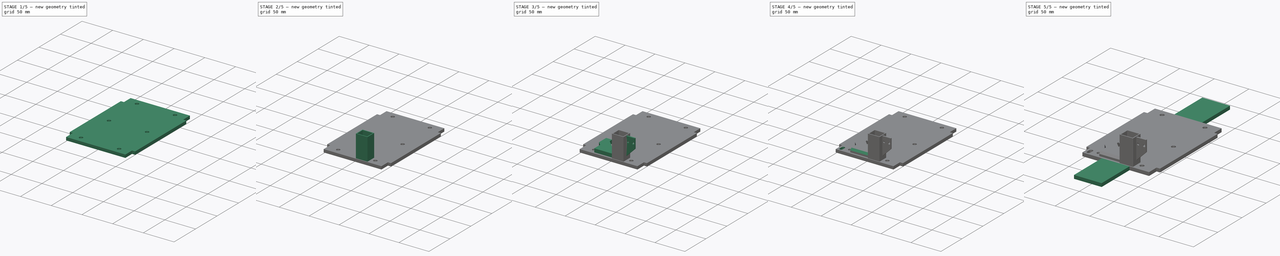
[diagram: build sequence overview — one tinted view per stage of 5, left to right]
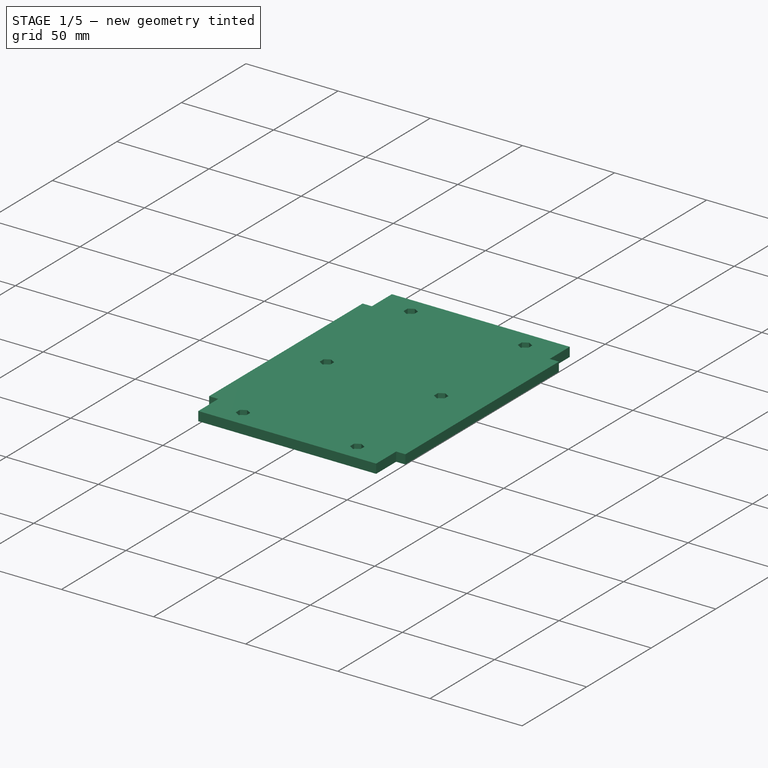
[diagram: stage 1 of 5 — iso view after this stage's code; geometry added in this stage tinted green]
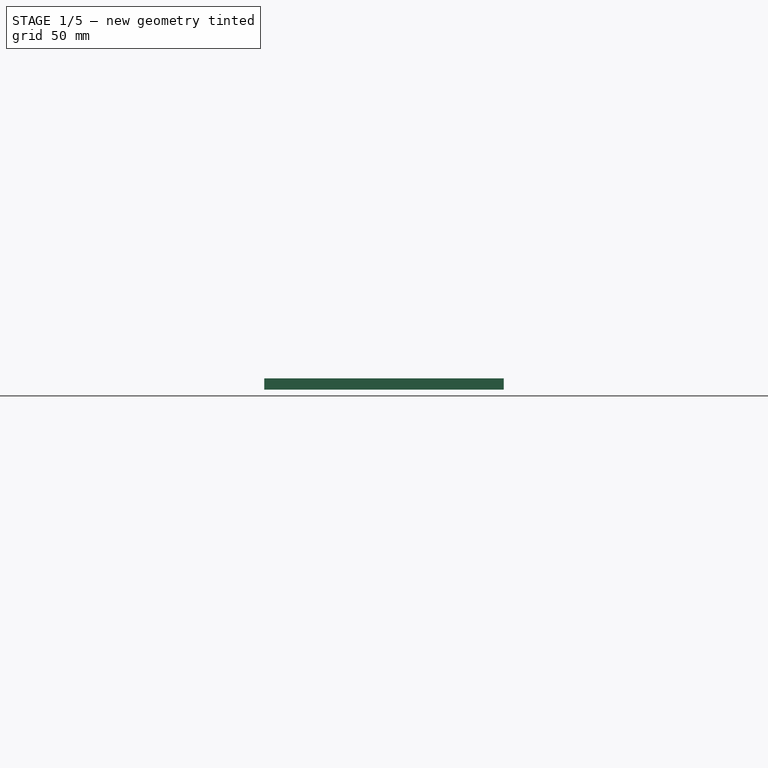
[diagram: stage 1 of 5 — front view after this stage's code; geometry added in this stage tinted green]
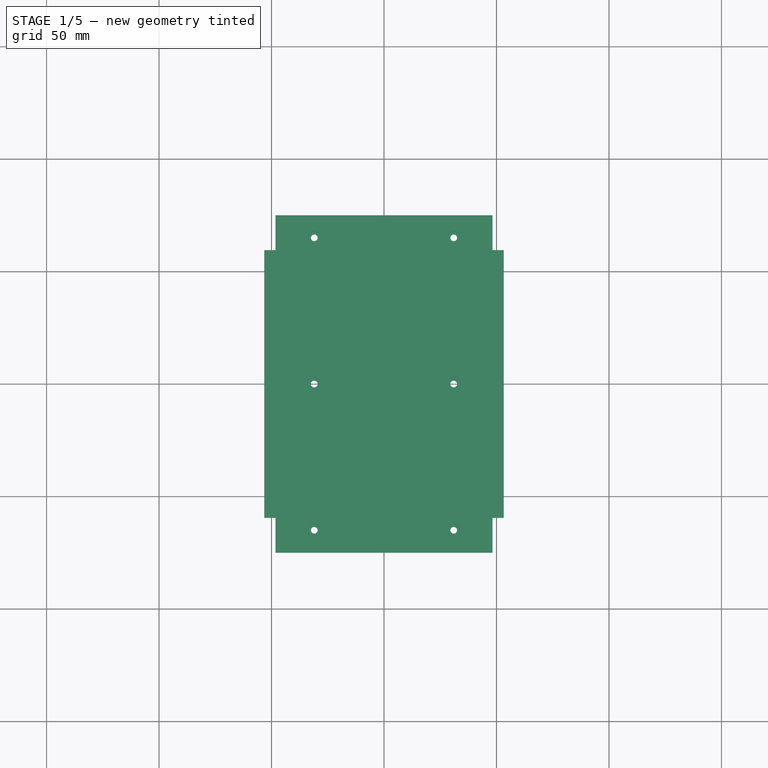
[diagram: stage 1 of 5 — top view after this stage's code; geometry added in this stage tinted green]
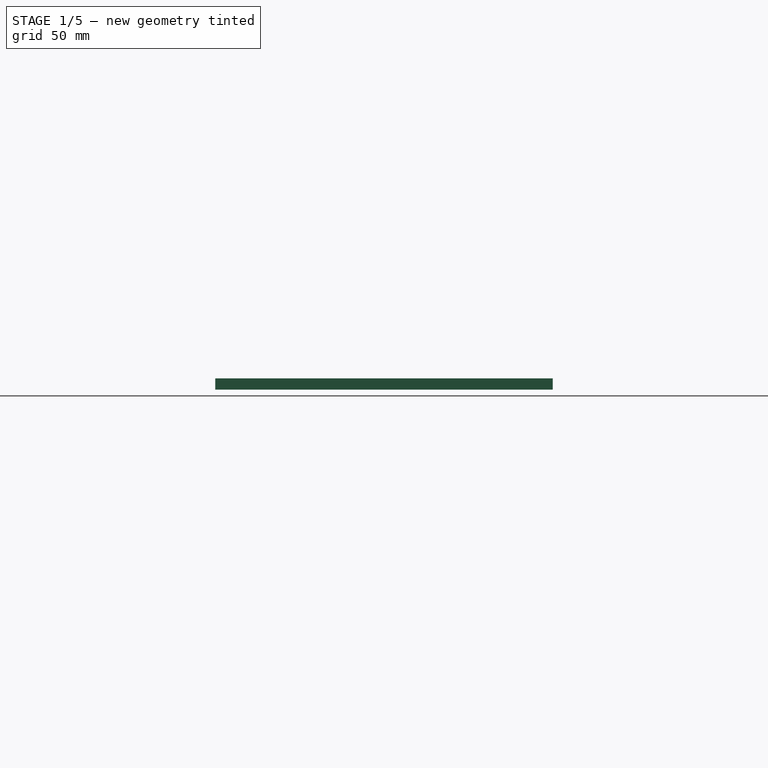
[diagram: stage 1 of 5 — right view after this stage's code; geometry added in this stage tinted green]
FCSTD DOCUMENT  (FreeCAD 0.18R4 (GitTag))
Label: Circuitry_Mountingplate (Template)
License: CreativeCommons Attribution-NonCommercial
LicenseURL: http://creativecommons.org/licenses/by-nc/4.0/
objects: Sketcher::SketchObject×14, PartDesign::Pad×7, PartDesign::Pocket×7, PartDesign::Body×3, PartDesign::Chamfer×1, PartDesign::Fillet×1, App::Part×1
note: 47 computed .brp shape members not serialized (recipe doc carries the construction recipe); baked Part::Feature solids carry a one-line shape summary decoded from their .brp

FEATURE [PartDesign::Body] Body002  label="Circuitry Mountingplate Rear Extension"
  Group = -> [Sketch418,Pad198]
  Origin = -> Origin003
  Tip = -> Pad198
FEATURE [Sketcher::SketchObject] Sketch
  MapMode = 5
  Support = -> [XY_Plane001]
  sketch-geometry (12):
    g0: LineSegment StartX=-53.25 StartY=-59.5 StartZ=0 EndX=-53.25 EndY=59.5 EndZ=0
    g1: LineSegment StartX=-53.25 StartY=59.5 StartZ=0 EndX=-48.25 EndY=59.5 EndZ=0
    g2: LineSegment StartX=-48.25 StartY=59.5 StartZ=0 EndX=-48.25 EndY=75 EndZ=0
    g3: LineSegment StartX=-48.25 StartY=75 StartZ=0 EndX=48.25 EndY=75 EndZ=0
    g4: LineSegment StartX=48.25 StartY=75 StartZ=0 EndX=48.25 EndY=59.5 EndZ=0
    g5: LineSegment StartX=48.25 StartY=59.5 StartZ=0 EndX=53.25 EndY=59.5 EndZ=0
    g6: LineSegment StartX=53.25 StartY=59.5 StartZ=0 EndX=53.25 EndY=-59.5 EndZ=0
    g7: LineSegment StartX=53.25 StartY=-59.5 StartZ=0 EndX=48.25 EndY=-59.5 EndZ=0
    g8: LineSegment StartX=48.25 StartY=-59.5 StartZ=0 EndX=48.25 EndY=-75 EndZ=0
    g9: LineSegment StartX=48.25 StartY=-75 StartZ=0 EndX=-48.25 EndY=-75 EndZ=0
    g10: LineSegment StartX=-48.25 StartY=-75 StartZ=0 EndX=-48.25 EndY=-59.5 EndZ=0
    g11: LineSegment StartX=-48.25 StartY=-59.5 StartZ=0 EndX=-53.25 EndY=-59.5 EndZ=0
  constraints (33):
    c: Coincident(g0,g1)
    c: Horizontal(g1)
    c: Coincident(g1,g2)
    c: Vertical(g2)
    c: Coincident(g2,g3)
    c: Horizontal(g3)
    c: Coincident(g3,g4)
    c: Vertical(g4)
    c: Coincident(g4,g5)
    c: Coincident(g5,g6)
    c: Vertical(g6)
    c: Coincident(g6,g7)
    c: Coincident(g7,g8)
    c: Vertical(g8)
    c: Coincident(g8,g9)
    c: Horizontal(g9)
    c: Coincident(g9,g10)
    c: Vertical(g10)
    c: Coincident(g10,g11)
    c: Coincident(g11,g0)
    c: Horizontal(g11)
    c: Symmetric(g1,g4,g-2)
    c: Symmetric(g7,g10,g-2)
    c: Vertical(g10,g1)
    c: Equal(g1,g5)
    c: Horizontal(g5)
    c: Horizontal(g7)
    c: Equal(g2,g10)
    c: Symmetric(g0,g0,g-1)
    c: DistanceX(g0,g5) = 106.5
    c: DistanceY(g9,g2) = 150
    c: DistanceX(g1,g1) = 5
    c: DistanceY(g2,g2) = 15.5
FEATURE [PartDesign::Pad] Pad  label="Baseplate"
  Length = 5
  Length2 = 100
  Profile = -> Sketch
  Type = 0
FEATURE [Sketcher::SketchObject] Sketch002
  MapMode = 5
  Placement = pos=(0,0,5) rot=(0,0,1;0rad)
  Support = -> [Pad]
  sketch-geometry (48):
    g0: LineSegment StartX=-31 StartY=-61.7668 StartZ=0 EndX=-33.8 EndY=-63.3834 EndZ=0
    g1: LineSegment StartX=-33.8 StartY=-63.3834 StartZ=0 EndX=-33.8 EndY=-66.6166 EndZ=0
    g2: LineSegment StartX=-33.8 StartY=-66.6166 StartZ=0 EndX=-31 EndY=-68.2332 EndZ=0
    g3: LineSegment StartX=-31 StartY=-68.2332 StartZ=0 EndX=-28.2 EndY=-66.6166 EndZ=0
    g4: LineSegment StartX=-28.2 StartY=-66.6166 StartZ=0 EndX=-28.2 EndY=-63.3834 EndZ=0
    g5: LineSegment StartX=-28.2 StartY=-63.3834 StartZ=0 EndX=-31 EndY=-61.7668 EndZ=0
    g6: Circle [constr] CenterX=-31 CenterY=-65 CenterZ=0 NormalX=0 NormalY=0 NormalZ=1 AngleXU=0 Radius=3.23316
    g7: LineSegment StartX=31 StartY=-61.7668 StartZ=0 EndX=28.2 EndY=-63.3834 EndZ=0
    g8: LineSegment StartX=28.2 StartY=-63.3834 StartZ=0 EndX=28.2 EndY=-66.6166 EndZ=0
    g9: LineSegment StartX=28.2 StartY=-66.6166 StartZ=0 EndX=31 EndY=-68.2332 EndZ=0
    g10: LineSegment StartX=31 StartY=-68.2332 StartZ=0 EndX=33.8 EndY=-66.6166 EndZ=0
    g11: LineSegment StartX=33.8 StartY=-66.6166 StartZ=0 EndX=33.8 EndY=-63.3834 EndZ=0
    g12: LineSegment StartX=33.8 StartY=-63.3834 StartZ=0 EndX=31 EndY=-61.7668 EndZ=0
    g13: Circle [constr] CenterX=31 CenterY=-65 CenterZ=0 NormalX=0 NormalY=0 NormalZ=1 AngleXU=0 Radius=3.23316
    g14: LineSegment StartX=31 StartY=3.23316 StartZ=0 EndX=28.2 EndY=1.61658 EndZ=0
    g15: LineSegment StartX=28.2 StartY=1.61658 StartZ=0 EndX=28.2 EndY=-1.61658 EndZ=0
    g16: LineSegment StartX=28.2 StartY=-1.61658 StartZ=0 EndX=31 EndY=-3.23316 EndZ=0
    g17: LineSegment StartX=31 StartY=-3.23316 StartZ=0 EndX=33.8 EndY=-1.61658 EndZ=0
    g18: LineSegment StartX=33.8 StartY=-1.61658 StartZ=0 EndX=33.8 EndY=1.61658 EndZ=0
    g19: LineSegment StartX=33.8 StartY=1.61658 StartZ=0 EndX=31 EndY=3.23316 EndZ=0
    g20: Circle [constr] CenterX=31 CenterY=0 CenterZ=0 NormalX=0 NormalY=0 NormalZ=1 AngleXU=0 Radius=3.23316
    g21: LineSegment StartX=-31 StartY=3.23316 StartZ=0 EndX=-33.8 EndY=1.61658 EndZ=0
    g22: LineSegment StartX=-33.8 StartY=1.61658 StartZ=0 EndX=-33.8 EndY=-1.61658 EndZ=0
    g23: LineSegment StartX=-33.8 StartY=-1.61658 StartZ=0 EndX=-31 EndY=-3.23316 EndZ=0
    g24: LineSegment StartX=-31 StartY=-3.23316 StartZ=0 EndX=-28.2 EndY=-1.61658 EndZ=0
    g25: LineSegment StartX=-28.2 StartY=-1.61658 StartZ=0 EndX=-28.2 EndY=1.61658 EndZ=0
    g26: LineSegment StartX=-28.2 StartY=1.61658 StartZ=0 EndX=-31 EndY=3.23316 EndZ=0
    g27: Circle [constr] CenterX=-31 CenterY=0 CenterZ=0 NormalX=0 NormalY=0 NormalZ=1 AngleXU=0 Radius=3.23316
    g28: LineSegment StartX=-31 StartY=68.2332 StartZ=0 EndX=-33.8 EndY=66.6166 EndZ=0
    g29: LineSegment StartX=-33.8 StartY=66.6166 StartZ=0 EndX=-33.8 EndY=63.3834 EndZ=0
    g30: LineSegment StartX=-33.8 StartY=63.3834 StartZ=0 EndX=-31 EndY=61.7668 EndZ=0
    g31: LineSegment StartX=-31 StartY=61.7668 StartZ=0 EndX=-28.2 EndY=63.3834 EndZ=0
    g32: LineSegment StartX=-28.2 StartY=63.3834 StartZ=0 EndX=-28.2 EndY=66.6166 EndZ=0
    g33: LineSegment StartX=-28.2 StartY=66.6166 StartZ=0 EndX=-31 EndY=68.2332 EndZ=0
    g34: Circle [constr] CenterX=-31 CenterY=65 CenterZ=0 NormalX=0 NormalY=0 NormalZ=1 AngleXU=0 Radius=3.23316
    g35: LineSegment StartX=31 StartY=68.2332 StartZ=0 EndX=28.2 EndY=66.6166 EndZ=0
    g36: LineSegment StartX=28.2 StartY=66.6166 StartZ=0 EndX=28.2 EndY=63.3834 EndZ=0
    g37: LineSegment StartX=28.2 StartY=63.3834 StartZ=0 EndX=31 EndY=61.7668 EndZ=0
    g38: LineSegment StartX=31 StartY=61.7668 StartZ=0 EndX=33.8 EndY=63.3834 EndZ=0
    g39: LineSegment StartX=33.8 StartY=63.3834 StartZ=0 EndX=33.8 EndY=66.6166 EndZ=0
    g40: LineSegment StartX=33.8 StartY=66.6166 StartZ=0 EndX=31 EndY=68.2332 EndZ=0
    g41: Circle [constr] CenterX=31 CenterY=65 CenterZ=0 NormalX=0 NormalY=0 NormalZ=1 AngleXU=0 Radius=3.23316
    g42: Circle CenterX=-31 CenterY=65 CenterZ=0 NormalX=0 NormalY=0 NormalZ=1 AngleXU=0 Radius=1.5
    g43: Circle CenterX=31 CenterY=65 CenterZ=0 NormalX=0 NormalY=0 NormalZ=1 AngleXU=0 Radius=1.5
    g44: Circle CenterX=-31 CenterY=0 CenterZ=0 NormalX=0 NormalY=0 NormalZ=1 AngleXU=0 Radius=1.5
    g45: Circle CenterX=31 CenterY=0 CenterZ=0 NormalX=0 NormalY=0 NormalZ=1 AngleXU=0 Radius=1.5
    g46: Circle CenterX=31 CenterY=-65 CenterZ=0 NormalX=0 NormalY=0 NormalZ=1 AngleXU=0 Radius=1.5
    g47: Circle CenterX=-31 CenterY=-65 CenterZ=0 NormalX=0 NormalY=0 NormalZ=1 AngleXU=0 Radius=1.5
  constraints (110):
    c: Coincident(g0,g1)
    c: Coincident(g1,g2)
    c: Coincident(g2,g3)
    c: Coincident(g3,g4)
    c: Coincident(g4,g5)
    c: Coincident(g5,g0)
    c: Equal(g0, g1-g5) x5
    c: PointOnObject(g0,g6)
    c: PointOnObject(g1,g6)
    c: PointOnObject(g2,g6)
    c: PointOnObject(g3,g6)
    c: PointOnObject(g4,g6)
    c: PointOnObject(g5,g6)
    c: Coincident(g7,g8)
    c: Coincident(g8,g9)
    c: Coincident(g9,g10)
    c: Coincident(g10,g11)
    c: Coincident(g11,g12)
    c: Coincident(g12,g7)
    c: Equal(g7, g8-g12) x5
    c: PointOnObject(g7,g13)
    c: PointOnObject(g8,g13)
    c: PointOnObject(g9,g13)
    c: PointOnObject(g10,g13)
    c: PointOnObject(g11,g13)
    c: PointOnObject(g12,g13)
    c: Coincident(g14,g15)
    c: Coincident(g15,g16)
    c: Coincident(g16,g17)
    c: Coincident(g17,g18)
    c: Coincident(g18,g19)
    c: Coincident(g19,g14)
    c: Equal(g14, g15-g19) x5
    c: PointOnObject(g14,g20)
    c: PointOnObject(g15,g20)
    c: PointOnObject(g16,g20)
    c: PointOnObject(g17,g20)
    c: PointOnObject(g18,g20)
    c: PointOnObject(g19,g20)
    c: PointOnObject(g20,g-1)
    c: Coincident(g21,g22)
    c: Coincident(g22,g23)
    c: Coincident(g23,g24)
    c: Coincident(g24,g25)
    c: Coincident(g25,g26)
    c: Coincident(g26,g21)
    c: Equal(g21, g22-g26) x5
    c: PointOnObject(g21,g27)
    c: PointOnObject(g22,g27)
    c: PointOnObject(g23,g27)
    c: PointOnObject(g24,g27)
    c: PointOnObject(g25,g27)
    c: PointOnObject(g26,g27)
    c: Coincident(g28,g29)
    c: Coincident(g29,g30)
    c: Coincident(g30,g31)
    c: Coincident(g31,g32)
    c: Coincident(g32,g33)
    c: Coincident(g33,g28)
    c: Equal(g28, g29-g33) x5
    c: PointOnObject(g28,g34)
    c: PointOnObject(g29,g34)
    c: PointOnObject(g30,g34)
    c: PointOnObject(g31,g34)
    c: PointOnObject(g32,g34)
    c: PointOnObject(g33,g34)
    c: Coincident(g35,g36)
    c: Coincident(g36,g37)
    c: Coincident(g37,g38)
    c: Coincident(g38,g39)
    c: Coincident(g39,g40)
    c: Coincident(g40,g35)
    c: Equal(g35, g36-g40) x5
    c: PointOnObject(g35,g41)
    c: PointOnObject(g36,g41)
    c: PointOnObject(g37,g41)
    c: PointOnObject(g38,g41)
    c: PointOnObject(g39,g41)
    c: PointOnObject(g40,g41)
    c: Coincident(g42,g34)
    c: Coincident(g43,g41)
    c: Coincident(g44,g27)
    c: Coincident(g45,g20)
    c: Coincident(g46,g13)
    c: Coincident(g47,g6)
    c: Vertical(g4)
    c: Vertical(g8)
    c: Vertical(g15)
    c: Vertical(g25)
    c: Vertical(g32)
    c: Vertical(g36)
    c: Equal(g34,g41)
    c: Equal(g41,g27)
    c: Equal(g27,g20)
    c: Equal(g20,g13)
    c: Equal(g13,g6)
    c: Symmetric(g44,g45,g-1)
    c: Symmetric(g47,g46,g-2)
    c: Symmetric(g42,g43,g-2)
    c: Vertical(g42,g44)
    c: Equal(g42,g43)
    c: Equal(g43,g44)
    c: Equal(g44,g45)
    c: Equal(g45,g47)
    c: Equal(g47,g46)
    c: Radius(g46) = 1.5
    c: DistanceX(g7,g11) = 5.6
    c: DistanceX(g44,g45) = 62
    c: DistanceY(g45,g43) = 65
    c: Symmetric(g43,g46,g-1)
FEATURE [PartDesign::Pocket] Pocket  label="M3 Nutholes LiPo Mountingbrackets"
  BaseFeature = -> Pad
  Length = 2.5
  Length2 = 100
  Profile = -> Sketch002
  Type = 0
FEATURE [Sketcher::SketchObject] Sketch003
  ExternalGeometry = -> [Pocket]
  MapMode = 5
  Placement = pos=(0,0,5) rot=(0,0,1;0rad)
  Support = -> [Pocket]
  sketch-geometry (6):
    g0: Circle CenterX=-31 CenterY=65 CenterZ=0 NormalX=0 NormalY=0 NormalZ=1 AngleXU=0 Radius=1.5
    g1: Circle CenterX=31 CenterY=65 CenterZ=0 NormalX=0 NormalY=0 NormalZ=1 AngleXU=0 Radius=1.5
    g2: Circle CenterX=31 CenterY=0 CenterZ=0 NormalX=0 NormalY=0 NormalZ=1 AngleXU=0 Radius=1.5
    g3: Circle CenterX=-31 CenterY=0 CenterZ=0 NormalX=0 NormalY=0 NormalZ=1 AngleXU=0 Radius=1.5
    g4: Circle CenterX=-31 CenterY=-65 CenterZ=0 NormalX=0 NormalY=0 NormalZ=1 AngleXU=0 Radius=1.5
    g5: Circle CenterX=31 CenterY=-65 CenterZ=0 NormalX=0 NormalY=0 NormalZ=1 AngleXU=0 Radius=1.5
  constraints (12):
    c: Coincident(g0,g-8)
    c: Coincident(g1,g-7)
    c: Coincident(g2,g-6)
    c: Coincident(g3,g-5)
    c: Coincident(g4,g-4)
    c: Coincident(g5,g-3)
    c: Equal(g5,g4)
    c: Equal(g4,g3)
    c: Equal(g3,g2)
    c: Equal(g2,g0)
    c: Equal(g0,g1)
    c: Equal(g1,g-5)
FEATURE [PartDesign::Pocket] Pocket001  label="M3 Screwholes LiPo Mountingbrackets"
  BaseFeature = -> Pocket
  Length = 5
  Length2 = 100
  Profile = -> Sketch003
  Type = 0
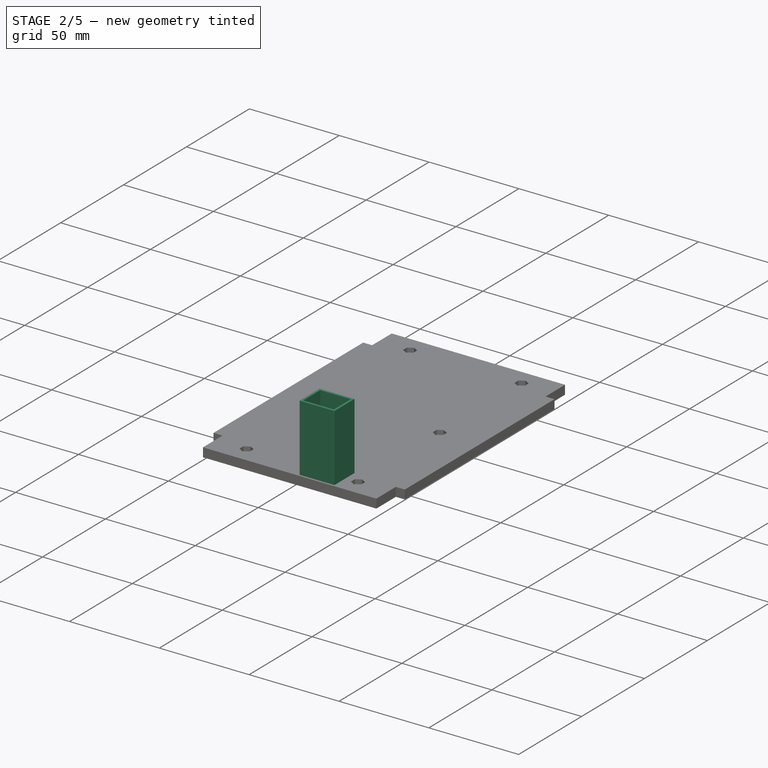
[diagram: stage 2 of 5 — iso view after this stage's code; geometry added in this stage tinted green]
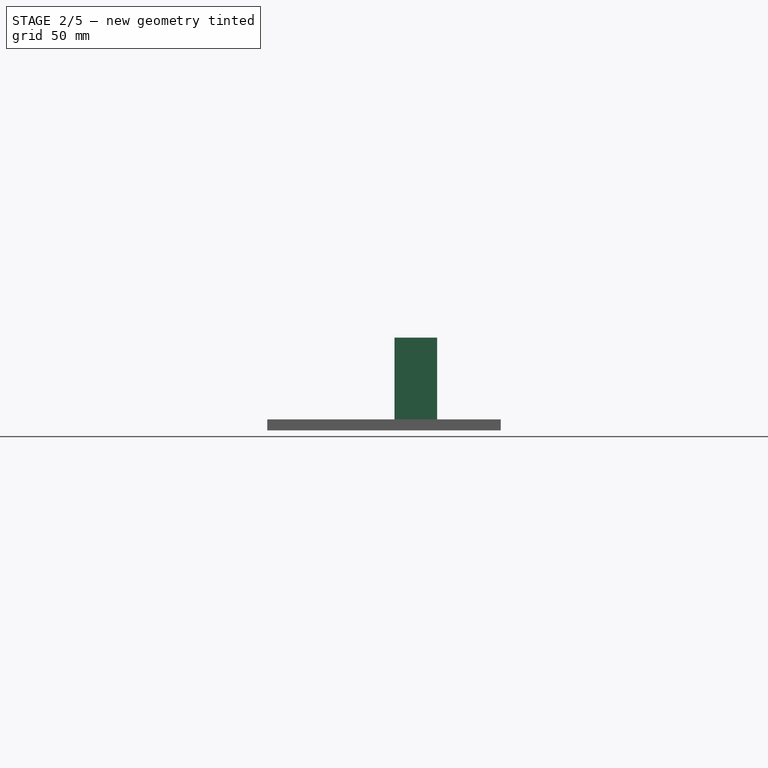
[diagram: stage 2 of 5 — front view after this stage's code; geometry added in this stage tinted green]
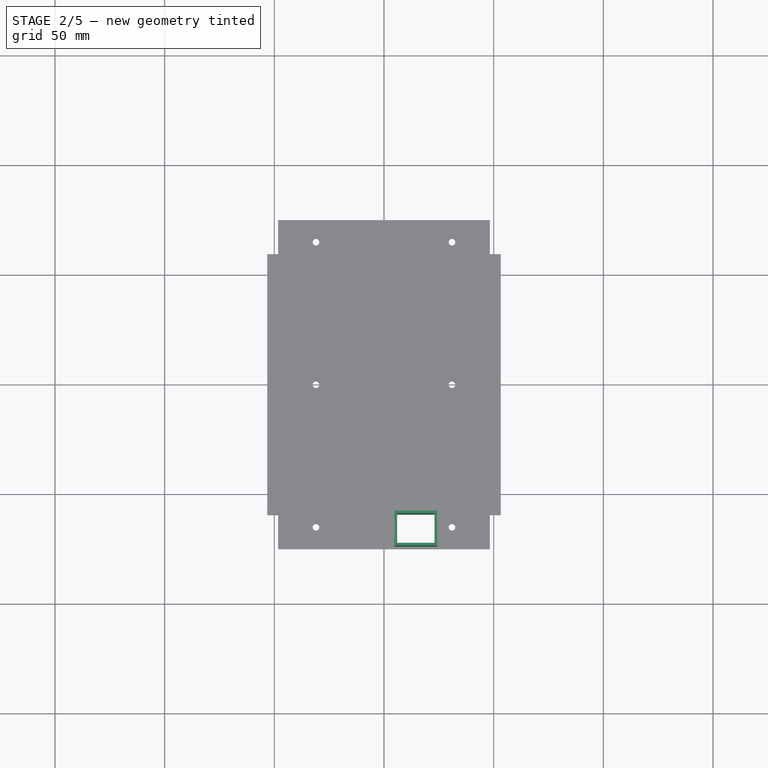
[diagram: stage 2 of 5 — top view after this stage's code; geometry added in this stage tinted green]
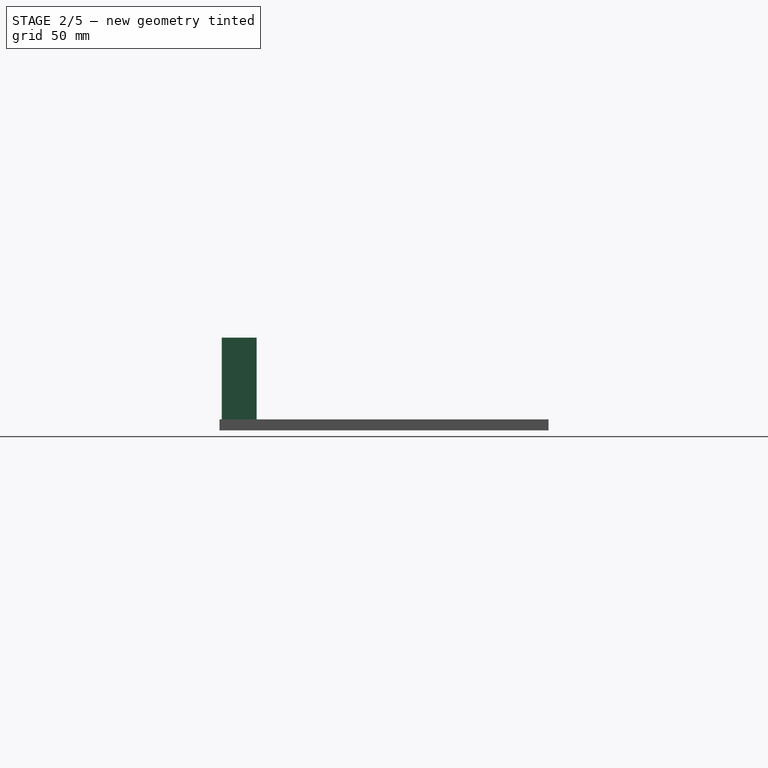
[diagram: stage 2 of 5 — right view after this stage's code; geometry added in this stage tinted green]
FEATURE [Sketcher::SketchObject] Sketch004
  MapMode = 5
  Placement = pos=(0,0,5) rot=(0,0,1;0rad)
  Support = -> [Pocket001]
  sketch-geometry (4):
    g0: LineSegment StartX=6 StartY=-72.75 StartZ=0 EndX=26.5 EndY=-72.75 EndZ=0
    g1: LineSegment StartX=26.5 StartY=-72.75 StartZ=0 EndX=26.5 EndY=-59.25 EndZ=0
    g2: LineSegment StartX=26.5 StartY=-59.25 StartZ=0 EndX=6 EndY=-59.25 EndZ=0
    g3: LineSegment StartX=6 StartY=-59.25 StartZ=0 EndX=6 EndY=-72.75 EndZ=0
  constraints (12):
    c: Coincident(g0,g1)
    c: Coincident(g1,g2)
    c: Coincident(g2,g3)
    c: Coincident(g3,g0)
    c: Horizontal(g0)
    c: Horizontal(g2)
    c: Vertical(g1)
    c: Vertical(g3)
    c: DistanceX(g2,g2) = 20.5
    c: DistanceY(g1,g1) = 13.5
    c: DistanceX(g-1,g1) = 26.5
    c: DistanceY(g2,g-1) = 59.25
FEATURE [PartDesign::Pocket] Pocket002  label="Balancecharger-Cable Hole"
  BaseFeature = -> Pocket001
  Length = 5
  Length2 = 100
  Profile = -> Sketch004
  Type = 0
FEATURE [Sketcher::SketchObject] Sketch006
  MapMode = 5
  Placement = pos=(0,-59.25,0) rot=(1,0,0;1.5708rad)
  Support = -> [Pocket002]
  sketch-geometry (4):
    g0: LineSegment StartX=26.5 StartY=0.75 StartZ=0 EndX=23 EndY=4.25 EndZ=0
    g1: LineSegment StartX=23 StartY=4.25 StartZ=0 EndX=23 EndY=5 EndZ=0
    g2: LineSegment StartX=23 StartY=5 StartZ=0 EndX=26.5 EndY=5 EndZ=0
    g3: LineSegment StartX=26.5 StartY=5 StartZ=0 EndX=26.5 EndY=0.75 EndZ=0
  constraints (12):
    c: Coincident(g0,g1)
    c: Vertical(g1)
    c: Coincident(g1,g2)
    c: Horizontal(g2)
    c: Coincident(g2,g3)
    c: Coincident(g3,g0)
    c: Vertical(g3)
    c: DistanceX(g2,g2) = 3.5
    c: DistanceY(g1,g1) = 0.75
    c: Angle(g0) = 2.35619
    c: DistanceY(g-1,g2) = 5
    c: DistanceX(g-1,g2) = 26.5
FEATURE [PartDesign::Pad] Pad001  label="Balancecharger-Cable Hole Wedge"
  BaseFeature = -> Pocket002
  Length = 13.5
  Length2 = 100
  Profile = -> Sketch006
  Type = 0
FEATURE [Sketcher::SketchObject] Sketch007
  ExternalGeometry = -> [Pad001]
  MapMode = 5
  Placement = pos=(0,0,5) rot=(0,0,1;0rad)
  Support = -> [Pad001]
  sketch-geometry (12):
    g0: LineSegment StartX=6 StartY=-59.25 StartZ=0 EndX=23 EndY=-59.25 EndZ=0
    g1: LineSegment StartX=23 StartY=-59.25 StartZ=0 EndX=23 EndY=-72.75 EndZ=0
    g2: LineSegment StartX=23 StartY=-72.75 StartZ=0 EndX=6 EndY=-72.75 EndZ=0
    g3: LineSegment StartX=6 StartY=-72.75 StartZ=0 EndX=6 EndY=-59.25 EndZ=0
    g4: LineSegment StartX=24.2 StartY=-73.95 StartZ=0 EndX=4.8 EndY=-73.95 EndZ=0
    g5: LineSegment StartX=4.8 StartY=-73.95 StartZ=0 EndX=4.8 EndY=-58.05 EndZ=0
    g6: LineSegment StartX=4.8 StartY=-58.05 StartZ=0 EndX=24.2 EndY=-58.05 EndZ=0
    g7: LineSegment StartX=24.2 StartY=-58.05 StartZ=0 EndX=24.2 EndY=-73.95 EndZ=0
    g8: LineSegment [constr] StartX=4.8 StartY=-58.05 StartZ=0 EndX=6 EndY=-59.25 EndZ=0
    g9: LineSegment [constr] StartX=6 StartY=-72.75 StartZ=0 EndX=4.8 EndY=-73.95 EndZ=0
    g10: LineSegment [constr] StartX=23 StartY=-72.75 StartZ=0 EndX=24.2 EndY=-73.95 EndZ=0
    g11: LineSegment [constr] StartX=23 StartY=-59.25 StartZ=0 EndX=24.2 EndY=-58.05 EndZ=0
  constraints (29):
    c: Coincident(g0,g1)
    c: Coincident(g1,g2)
    c: Coincident(g2,g3)
    c: Coincident(g3,g0)
    c: Horizontal(g2)
    c: Vertical(g1)
    c: Coincident(g4,g5)
    c: Coincident(g5,g6)
    c: Coincident(g6,g7)
    c: Coincident(g7,g4)
    c: Horizontal(g4)
    c: Horizontal(g6)
    c: Vertical(g5)
    c: Coincident(g0,g-4)
    c: Coincident(g0,g-3)
    c: Coincident(g2,g-4)
    c: DistanceY(g0,g5) = 1.2
    c: Coincident(g8,g5)
    c: Coincident(g8,g0)
    c: Coincident(g9,g2)
    c: Coincident(g9,g4)
    c: Coincident(g10,g1)
    c: Coincident(g11,g0)
    c: Coincident(g11,g6)
    c: Coincident(g10,g4)
    c: Equal(g10,g11)
    c: Equal(g11,g8)
    c: Equal(g8,g9)
    c: DistanceX(g5,g0) = 1.2
FEATURE [PartDesign::Pad] Pad002  label="Balancecharger-Cable Hole Tunnel"
  BaseFeature = -> Pad001
  Length = 37.25
  Length2 = 100
  Profile = -> Sketch007
  Type = 0
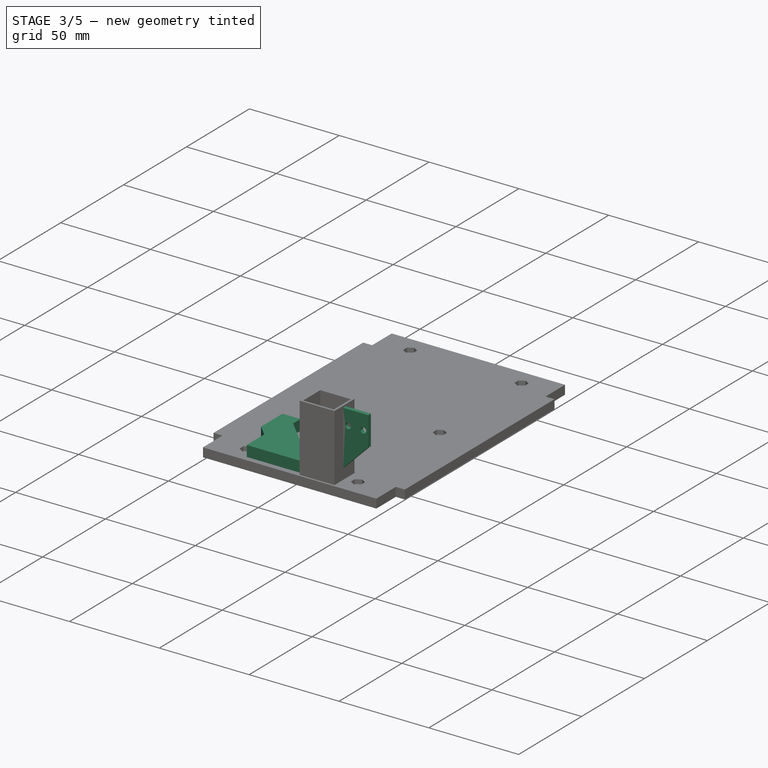
[diagram: stage 3 of 5 — iso view after this stage's code; geometry added in this stage tinted green]
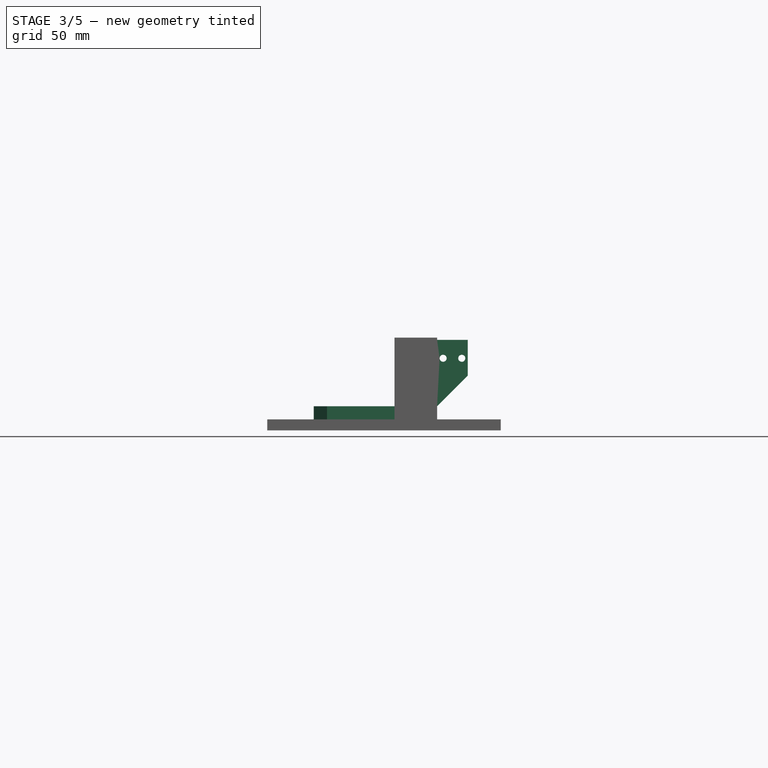
[diagram: stage 3 of 5 — front view after this stage's code; geometry added in this stage tinted green]
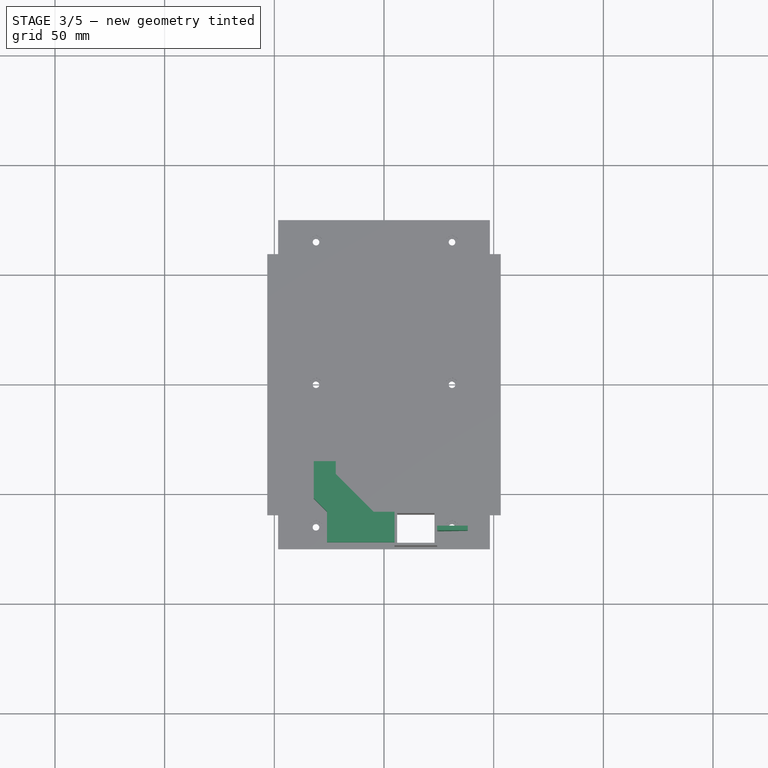
[diagram: stage 3 of 5 — top view after this stage's code; geometry added in this stage tinted green]
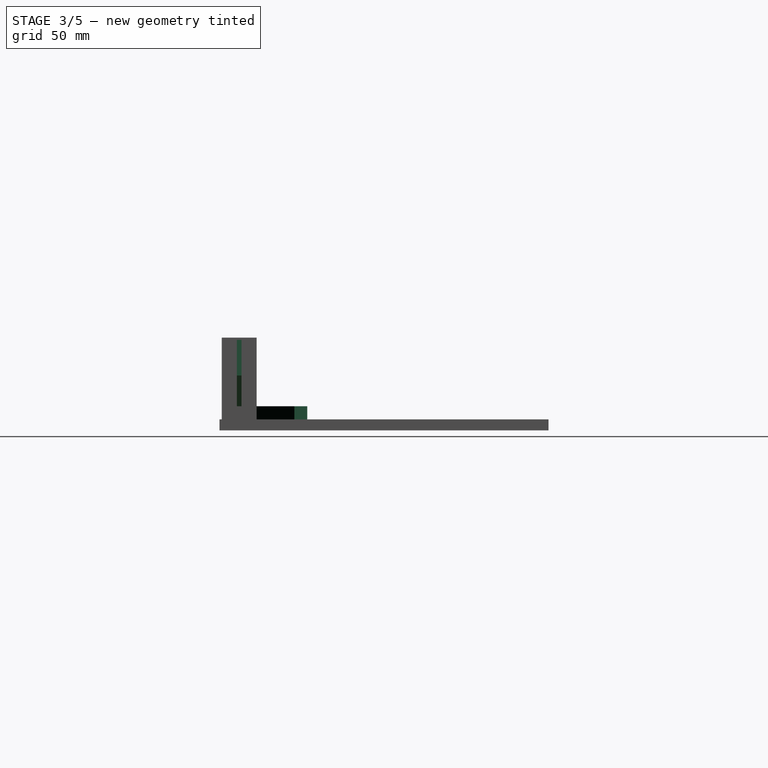
[diagram: stage 3 of 5 — right view after this stage's code; geometry added in this stage tinted green]
FEATURE [Sketcher::SketchObject] Sketch008
  ExternalGeometry = -> [Pad002]
  MapMode = 5
  Placement = pos=(24.2,0,0) rot=(0.57735,0.57735,0.57735;2.0944rad)
  Support = -> [Pad002]
  sketch-geometry (5):
    g0: LineSegment [constr] StartX=-66 StartY=42.25 StartZ=0 EndX=-66 EndY=0 EndZ=0
    g1: LineSegment StartX=-67.05 StartY=41.25 StartZ=0 EndX=-64.95 EndY=41.25 EndZ=0
    g2: LineSegment StartX=-64.95 StartY=41.25 StartZ=0 EndX=-64.95 EndY=5 EndZ=0
    g3: LineSegment StartX=-64.95 StartY=5 StartZ=0 EndX=-67.05 EndY=5 EndZ=0
    g4: LineSegment StartX=-67.05 StartY=5 StartZ=0 EndX=-67.05 EndY=41.25 EndZ=0
  constraints (14):
    c: PointOnObject(g0,g-1)
    c: Vertical(g0)
    c: Symmetric(g-3,g-3,g0)
    c: Coincident(g1,g2)
    c: Coincident(g2,g3)
    c: Coincident(g3,g4)
    c: Coincident(g4,g1)
    c: Horizontal(g3)
    c: Vertical(g2)
    c: Vertical(g4)
    c: DistanceY(g0,g2) = 5
    c: DistanceX(g1,g1) = 2.1
    c: Symmetric(g1,g1,g0)
    c: DistanceY(g0,g1) = 41.25
FEATURE [PartDesign::Pad] Pad003  label="USB-Ports Fin"
  BaseFeature = -> Pad002
  Length = 14
  Length2 = 100
  Profile = -> Sketch008
  Type = 0
FEATURE [Sketcher::SketchObject] Sketch009
  ExternalGeometry = -> [Pad003]
  MapMode = 5
  Placement = pos=(0,-67.05,0) rot=(1,0,0;1.5708rad)
  Support = -> [Pad003]
  sketch-geometry (4):
    g0: LineSegment StartX=24.2 StartY=5 StartZ=0 EndX=24.2 EndY=11 EndZ=0
    g1: LineSegment StartX=24.2 StartY=11 StartZ=0 EndX=38.2 EndY=25 EndZ=0
    g2: LineSegment StartX=38.2 StartY=25 StartZ=0 EndX=38.2 EndY=5 EndZ=0
    g3: LineSegment StartX=38.2 StartY=5 StartZ=0 EndX=24.2 EndY=5 EndZ=0
  constraints (11):
    c: Vertical(g0)
    c: Coincident(g0,g1)
    c: Coincident(g1,g2)
    c: Vertical(g2)
    c: Coincident(g2,g3)
    c: Coincident(g3,g0)
    c: Horizontal(g3)
    c: DistanceX(g0,g2) = 14
    c: DistanceY(g2,g2) = 20
    c: Coincident(g2,g-3)
    c: Angle(g1) = 0.785398
FEATURE [PartDesign::Pocket] Pocket003  label="USB-Ports Fin Cutout"
  BaseFeature = -> Pad003
  Length = 2.1
  Length2 = 100
  Profile = -> Sketch009
  Type = 0
FEATURE [Sketcher::SketchObject] Sketch010
  MapMode = 5
  Placement = pos=(0,-67.05,0) rot=(1,0,0;1.5708rad)
  Support = -> [Pocket003]
  sketch-geometry (2):
    g0: Circle CenterX=26.95 CenterY=32.85 CenterZ=0 NormalX=0 NormalY=0 NormalZ=1 AngleXU=0 Radius=1.6
    g1: Circle CenterX=35.45 CenterY=32.85 CenterZ=0 NormalX=0 NormalY=0 NormalZ=1 AngleXU=0 Radius=1.6
  constraints (6):
    c: Equal(g1,g0)
    c: Radius(g1) = 1.6
    c: DistanceX(g0,g1) = 8.5
    c: DistanceY(g-1,g0) = 32.85
    c: DistanceX(g-1,g0) = 26.95
    c: Horizontal(g1,g0)
FEATURE [PartDesign::Pocket] Pocket004  label="USB-Ports M3 Screwholes"
  BaseFeature = -> Pocket003
  Length = 2.1
  Length2 = 100
  Profile = -> Sketch010
  Type = 0
FEATURE [Sketcher::SketchObject] Sketch410
  ExternalGeometry = -> [Pocket004]
  MapMode = 5
  Placement = pos=(0,0,5) rot=(0,0,1;0rad)
  Support = -> [Pocket004]
  sketch-geometry (9):
    g0: LineSegment StartX=4.8 StartY=-72 StartZ=0 EndX=-26 EndY=-72 EndZ=0
    g1: LineSegment StartX=-26 StartY=-72 StartZ=0 EndX=-26 EndY=-58.05 EndZ=0
    g2: LineSegment StartX=-26 StartY=-58.05 StartZ=0 EndX=-32 EndY=-52.05 EndZ=0
    g3: LineSegment StartX=-32 StartY=-52.05 StartZ=0 EndX=-32 EndY=-35 EndZ=0
    g4: LineSegment StartX=-32 StartY=-35 StartZ=0 EndX=-22 EndY=-35 EndZ=0
    g5: LineSegment StartX=-22 StartY=-35 StartZ=0 EndX=-22 EndY=-40.85 EndZ=0
    g6: LineSegment StartX=-22 StartY=-40.85 StartZ=0 EndX=-4.8 EndY=-58.05 EndZ=0
    g7: LineSegment StartX=-4.8 StartY=-58.05 StartZ=0 EndX=4.8 EndY=-58.05 EndZ=0
    g8: LineSegment StartX=4.8 StartY=-58.05 StartZ=0 EndX=4.8 EndY=-72 EndZ=0
  constraints (25):
    c: Horizontal(g0)
    c: Coincident(g0,g1)
    c: Vertical(g1)
    c: Coincident(g1,g2)
    c: Coincident(g2,g3)
    c: Vertical(g3)
    c: Coincident(g3,g4)
    c: Horizontal(g4)
    c: Coincident(g4,g5)
    c: Vertical(g5)
    c: Coincident(g5,g6)
    c: Coincident(g6,g7)
    c: Coincident(g7,g8)
    c: Coincident(g7,g-3)
    c: Parallel(g2,g6)
    c: Angle(g2) = 2.35619
    c: DistanceX(g4,g4) = 10
    c: Horizontal(g1,g6)
    c: DistanceX(g0,g-1) = 26
    c: DistanceX(g4,g-1) = 22
    c: Symmetric(g6,g7,g-2)
    c: Coincident(g0,g8)
    c: Vertical(g8)
    c: DistanceY(g0,g-1) = 72
    c: DistanceY(g0,g3) = 37
FEATURE [PartDesign::Pad] Pad193  label="Power Cable Cap"
  BaseFeature = -> Pocket004
  Length = 6
  Length2 = 100
  Profile = -> Sketch410
  Type = 0
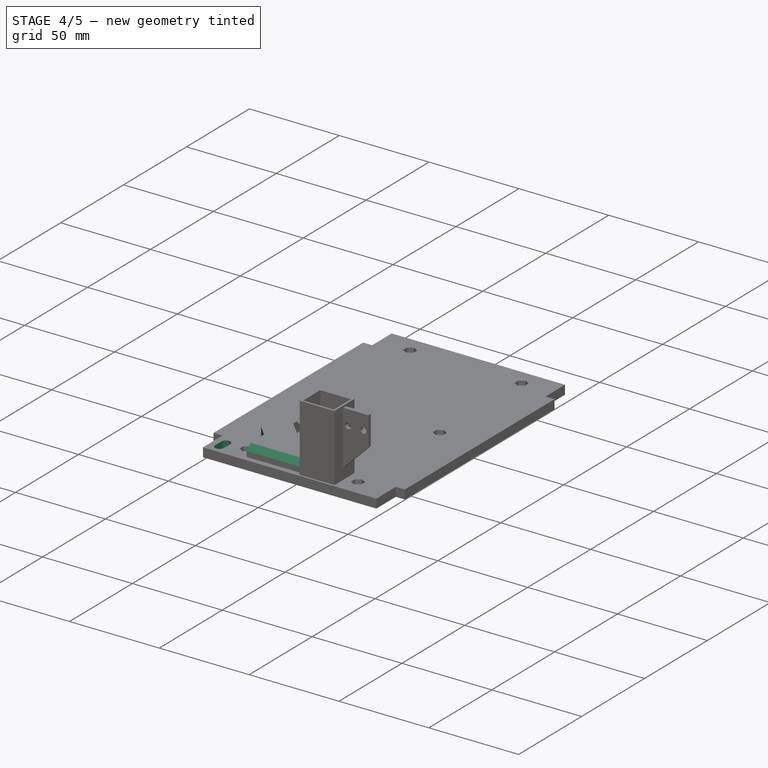
[diagram: stage 4 of 5 — iso view after this stage's code; geometry added in this stage tinted green]
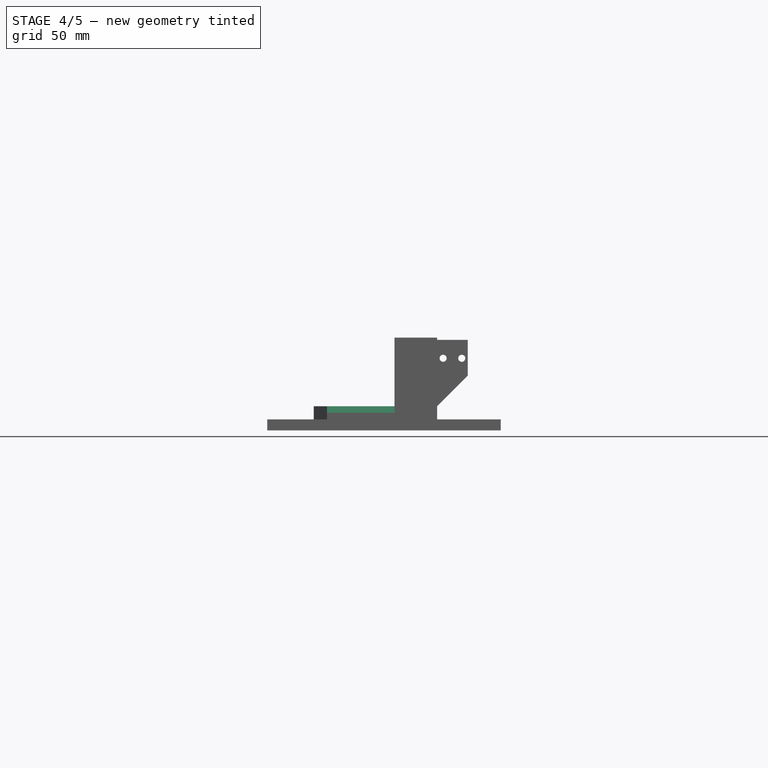
[diagram: stage 4 of 5 — front view after this stage's code; geometry added in this stage tinted green]
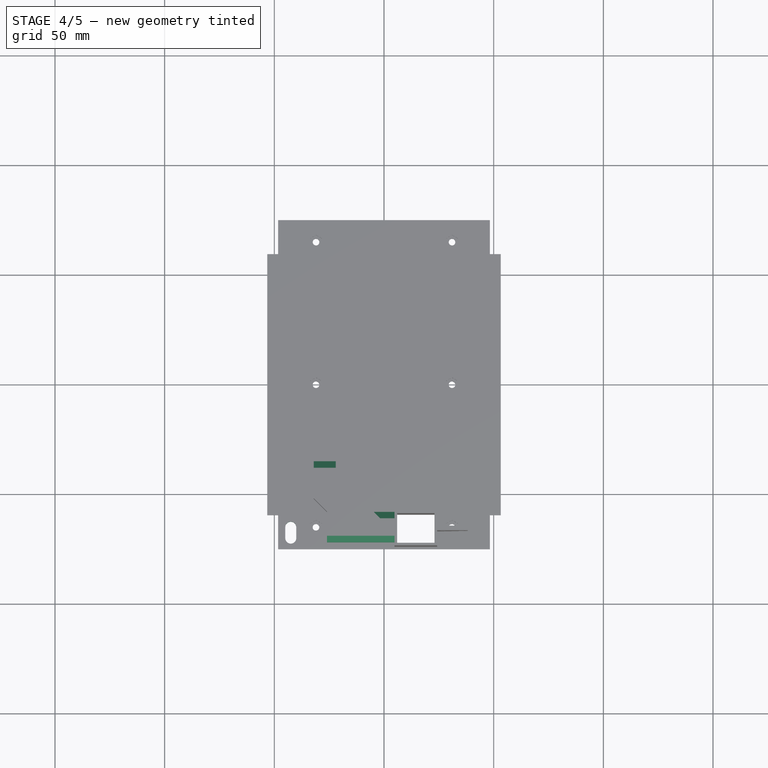
[diagram: stage 4 of 5 — top view after this stage's code; geometry added in this stage tinted green]
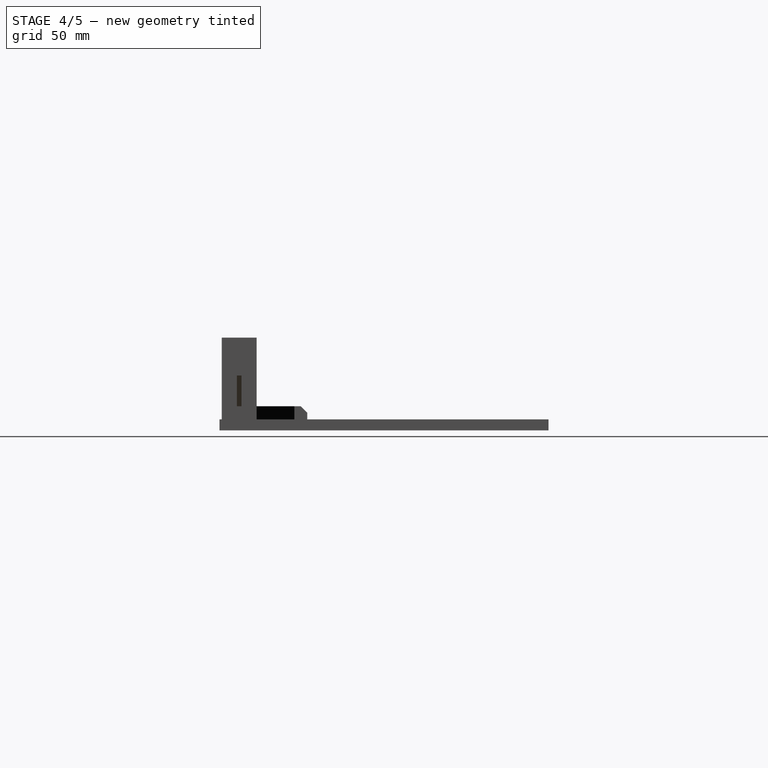
[diagram: stage 4 of 5 — right view after this stage's code; geometry added in this stage tinted green]
FEATURE [Sketcher::SketchObject] Sketch414
  ExternalGeometry = -> [Pad193]
  MapMode = 5
  Placement = pos=(0,0,0) rot=(1,0,0;3.14159rad)
  Support = -> [Pad193]
  sketch-geometry (9):
    g0: LineSegment StartX=6 StartY=70 StartZ=0 EndX=-24 EndY=70 EndZ=0
    g1: LineSegment StartX=-24 StartY=70 StartZ=0 EndX=-24 EndY=58.05 EndZ=0
    g2: LineSegment StartX=-24 StartY=58.05 StartZ=0 EndX=-30.8 EndY=51.25 EndZ=0
    g3: LineSegment StartX=-30.8 StartY=51.25 StartZ=0 EndX=-30.8 EndY=36.2 EndZ=0
    g4: LineSegment StartX=-30.8 StartY=36.2 StartZ=0 EndX=-23.2 EndY=36.2 EndZ=0
    g5: LineSegment StartX=-23.2 StartY=36.2 StartZ=0 EndX=-23.2 EndY=40.85 EndZ=0
    g6: LineSegment StartX=-23.2 StartY=40.85 StartZ=0 EndX=-4.8 EndY=59.25 EndZ=0
    g7: LineSegment StartX=-4.8 StartY=59.25 StartZ=0 EndX=6 EndY=59.25 EndZ=0
    g8: LineSegment StartX=6 StartY=59.25 StartZ=0 EndX=6 EndY=70 EndZ=0
  constraints (27):
    c: Horizontal(g0)
    c: Coincident(g0,g1)
    c: Vertical(g1)
    c: Coincident(g1,g2)
    c: Coincident(g2,g3)
    c: Vertical(g3)
    c: Coincident(g3,g4)
    c: Horizontal(g4)
    c: Coincident(g4,g5)
    c: Vertical(g5)
    c: Coincident(g5,g6)
    c: Coincident(g6,g7)
    c: Horizontal(g7)
    c: Coincident(g7,g8)
    c: Coincident(g8,g0)
    c: Vertical(g8)
    c: DistanceY(g8,g8) = 10.75
    c: DistanceX(g0,g0) = 30
    c: Vertical(g0,g-3)
    c: DistanceY(g-1,g0) = 70
    c: Parallel(g2,g6)
    c: Angle(g6) = 0.785398
    c: Horizontal(g-4,g1)
    c: DistanceX(g-4,g2) = 1.2
    c: Vertical(g-5,g6)
    c: Horizontal(g-5,g5)
    c: DistanceY(g-6,g3) = 1.2
FEATURE [PartDesign::Pocket] Pocket198  label="Power Cable Cave"
  BaseFeature = -> Pad193
  Length = 10
  Length2 = 100
  Profile = -> Sketch414
  Type = 0
FEATURE [PartDesign::Chamfer] Chamfer  label="Power Cable Cap & Cave Chamfer"
  Base = -> Pocket198 [Edge208,Edge222,Edge216,Edge144,Edge150,Edge136]
  BaseFeature = -> Pocket198
  Size = 3
FEATURE [Sketcher::SketchObject] Sketch449
  MapMode = 5
  Placement = pos=(0,0,5) rot=(0,0,1;0rad)
  sketch-geometry (4):
    g0: ArcOfCircle CenterX=-42.5 CenterY=-70 CenterZ=0 NormalX=0 NormalY=0 NormalZ=1 AngleXU=0 Radius=2.5 StartAngle=3.14159 EndAngle=6.28319
    g1: ArcOfCircle CenterX=-42.5 CenterY=-65 CenterZ=0 NormalX=0 NormalY=0 NormalZ=1 AngleXU=0 Radius=2.5 StartAngle=1e-15 EndAngle=3.14159
    g2: LineSegment StartX=-40 StartY=-70 StartZ=0 EndX=-40 EndY=-65 EndZ=0
    g3: LineSegment StartX=-45 StartY=-70 StartZ=0 EndX=-45 EndY=-65 EndZ=0
  constraints (10):
    c: Tangent(g0,g3) = 1.5708
    c: Tangent(g0,g2) = -1.5708
    c: Tangent(g2,g1) = -1.5708
    c: Tangent(g3,g1) = 1.5708
    c: Vertical(g2)
    c: Equal(g0,g1)
    c: Radius(g1) = 2.5
    c: DistanceY(g0,g1) = 5
    c: DistanceX(g1,g-1) = 40
    c: DistanceY(g1,g-1) = 65
FEATURE [PartDesign::Pocket] Pocket218  label="Power Cable Connector Hole"
  BaseFeature = -> Chamfer
  Length = 5
  Length2 = 100
  Profile = -> Sketch449
  Type = 0
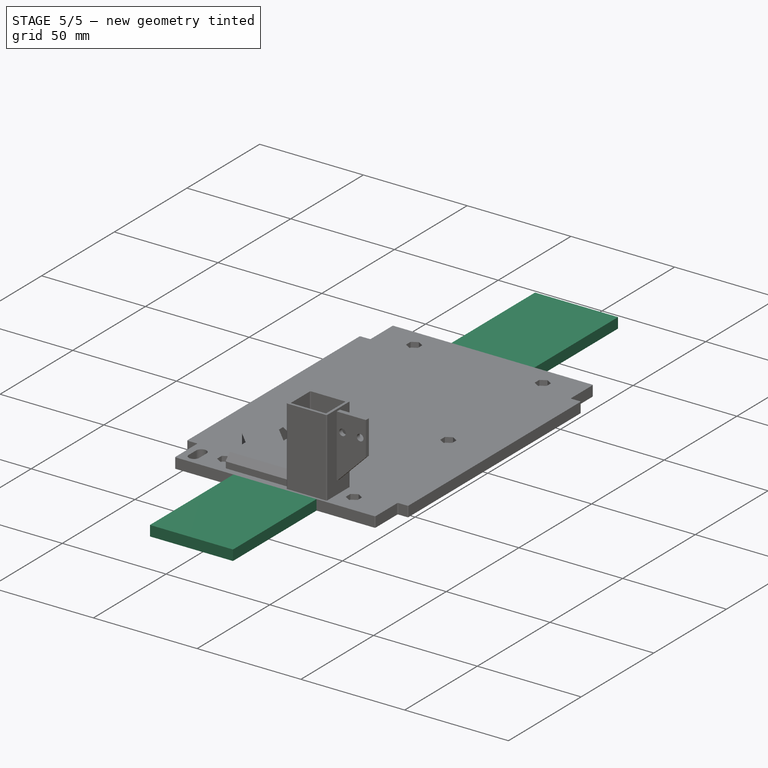
[diagram: stage 5 of 5 — iso view after this stage's code; geometry added in this stage tinted green]
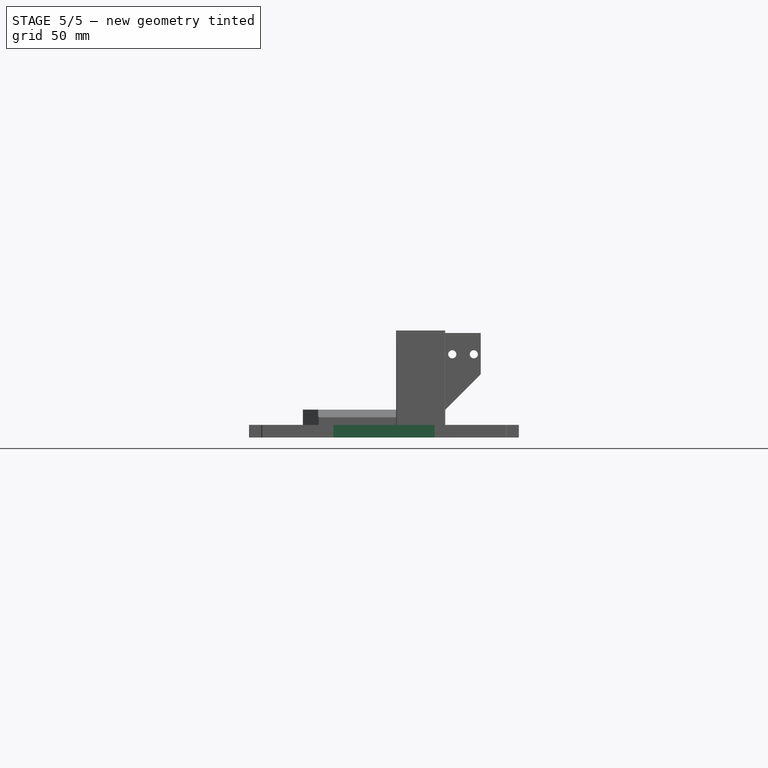
[diagram: stage 5 of 5 — front view after this stage's code; geometry added in this stage tinted green]
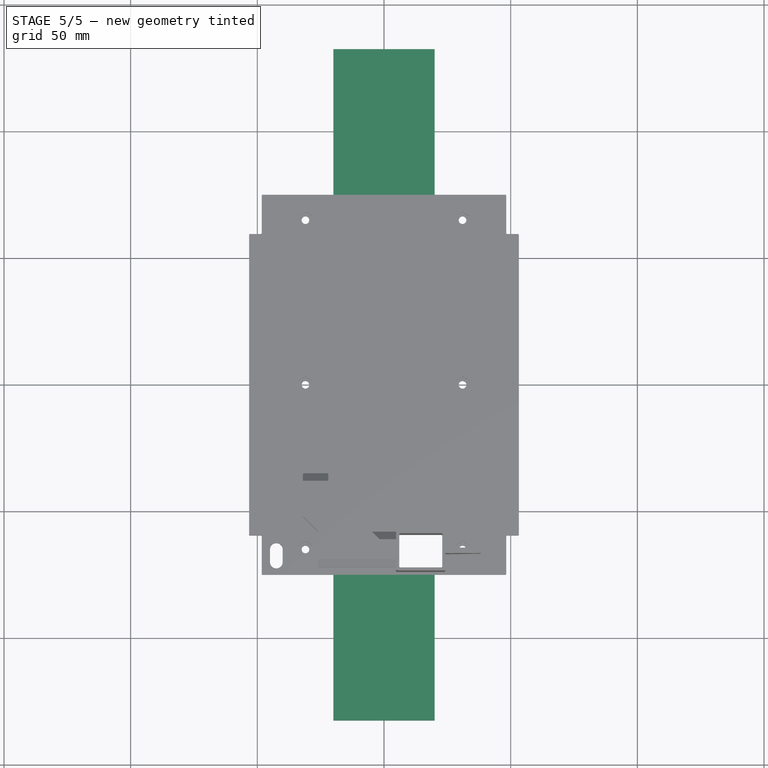
[diagram: stage 5 of 5 — top view after this stage's code; geometry added in this stage tinted green]
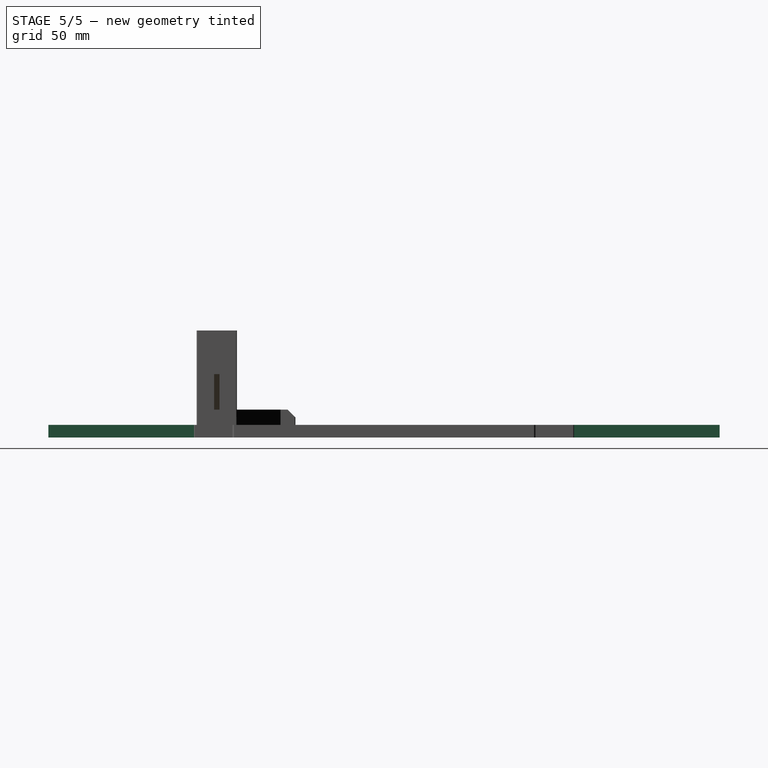
[diagram: stage 5 of 5 — right view after this stage's code; geometry added in this stage tinted green]
FEATURE [Sketcher::SketchObject] Sketch417
  MapMode = 5
  Support = -> [XY_Plane002]
  sketch-geometry (4):
    g0: LineSegment StartX=-20 StartY=75 StartZ=0 EndX=20 EndY=75 EndZ=0
    g1: LineSegment StartX=20 StartY=75 StartZ=0 EndX=20 EndY=132.5 EndZ=0
    g2: LineSegment StartX=20 StartY=132.5 StartZ=0 EndX=-20 EndY=132.5 EndZ=0
    g3: LineSegment StartX=-20 StartY=132.5 StartZ=0 EndX=-20 EndY=75 EndZ=0
  constraints (11):
    c: Coincident(g0,g1)
    c: Coincident(g1,g2)
    c: Coincident(g2,g3)
    c: Coincident(g3,g0)
    c: Horizontal(g0)
    c: Vertical(g1)
    c: Vertical(g3)
    c: DistanceX(g2,g2) = 40
    c: DistanceY(g1,g1) = 57.5
    c: Symmetric(g1,g2,g-2)
    c: DistanceY(g-1,g0) = 75
FEATURE [PartDesign::Pad] Pad197  label="available space in front shoulders"
  Length = 5
  Length2 = 100
  Profile = -> Sketch417
  Type = 0
FEATURE [PartDesign::Body] Body001  label="Circuitry Mountingplate Front Extension"
  Group = -> [Sketch417,Pad197]
  Origin = -> Origin002
  Tip = -> Pad197
FEATURE [Sketcher::SketchObject] Sketch418
  MapMode = 5
  Support = -> [XY_Plane003]
  sketch-geometry (4):
    g0: LineSegment StartX=-20 StartY=-75 StartZ=0 EndX=20 EndY=-75 EndZ=0
    g1: LineSegment StartX=20 StartY=-75 StartZ=0 EndX=20 EndY=-132.5 EndZ=0
    g2: LineSegment StartX=20 StartY=-132.5 StartZ=0 EndX=-20 EndY=-132.5 EndZ=0
    g3: LineSegment StartX=-20 StartY=-132.5 StartZ=0 EndX=-20 EndY=-75 EndZ=0
  constraints (11):
    c: Coincident(g0,g1)
    c: Coincident(g1,g2)
    c: Coincident(g2,g3)
    c: Coincident(g3,g0)
    c: Horizontal(g2)
    c: Vertical(g1)
    c: Vertical(g3)
    c: DistanceY(g1,g1) = 57.5
    c: DistanceX(g0,g0) = 40
    c: Symmetric(g0,g0,g-2)
    c: DistanceY(g0,g-1) = 75
FEATURE [PartDesign::Pad] Pad198  label="available space in rear shoulders"
  Length = 5
  Length2 = 100
  Profile = -> Sketch418
  Type = 0
FEATURE [PartDesign::Fillet] Fillet  label="Smooth Edges"
  Base = -> Pocket218 [Edge85,Edge89,Edge93,Edge96,Edge92,Edge88,Edge84,Edge80,Edge76,Edge74,Edge77,Edge81,Edge110,Edge17,Edge73,Edge3,Edge5,Edge51,Edge103,Edge101,Edge104,Edge107,Edge108,Edge62,Edge52,Edge7,Edge10,Edge134,Edge145,Edge139,Edge135,Edge247,Edge319,Edge322,Edge320,Edge317,Edge316,Edge260]
  BaseFeature = -> Pocket218
  Radius = 0.4
FEATURE [PartDesign::Body] Body  label="Circuitry Mountingplate Base"
  Group = -> [Sketch,Pad,Sketch002,Pocket,Sketch003,Pocket001,Sketch004,Pocket002,Sketch006,Pad001,Sketch007,Pad002,Sketch008,Pad003,Sketch009,Pocket003,Sketch010,Pocket004,Sketch410,Pad193,Sketch414,Pocket198,Chamfer,Sketch449,Pocket218,Fillet]
  Origin = -> Origin001
  Tip = -> Fillet
FEATURE [App::Part] Part  label="Circuitry Mountingplate Template"
  Group = -> [Body001,Body002,Body]
  Origin = -> Origin
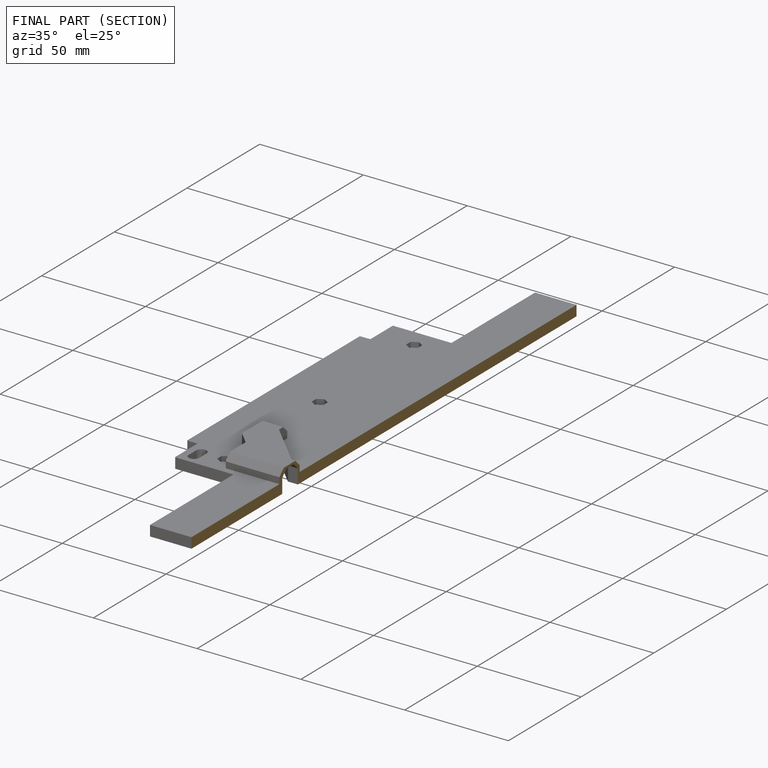
[diagram: finished part — half-section view (interior)]
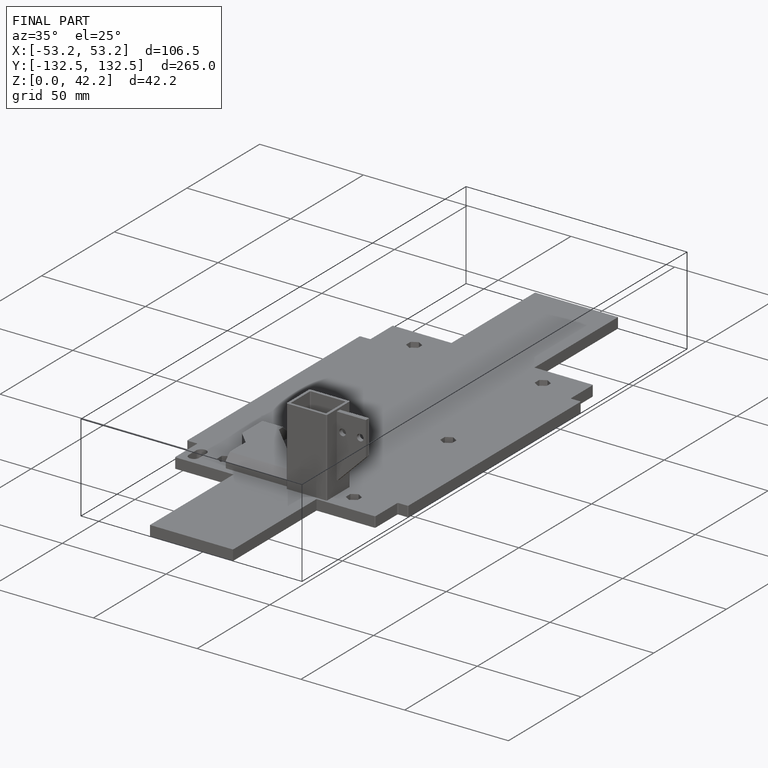
[diagram: finished part — iso view with bounding-box wireframe]
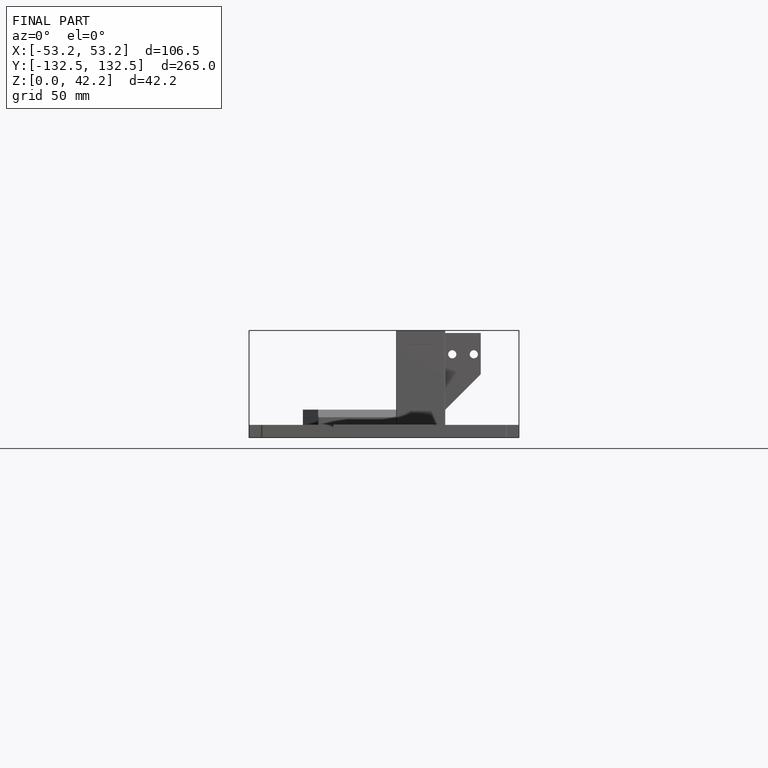
[diagram: finished part — front view with bounding-box wireframe]
